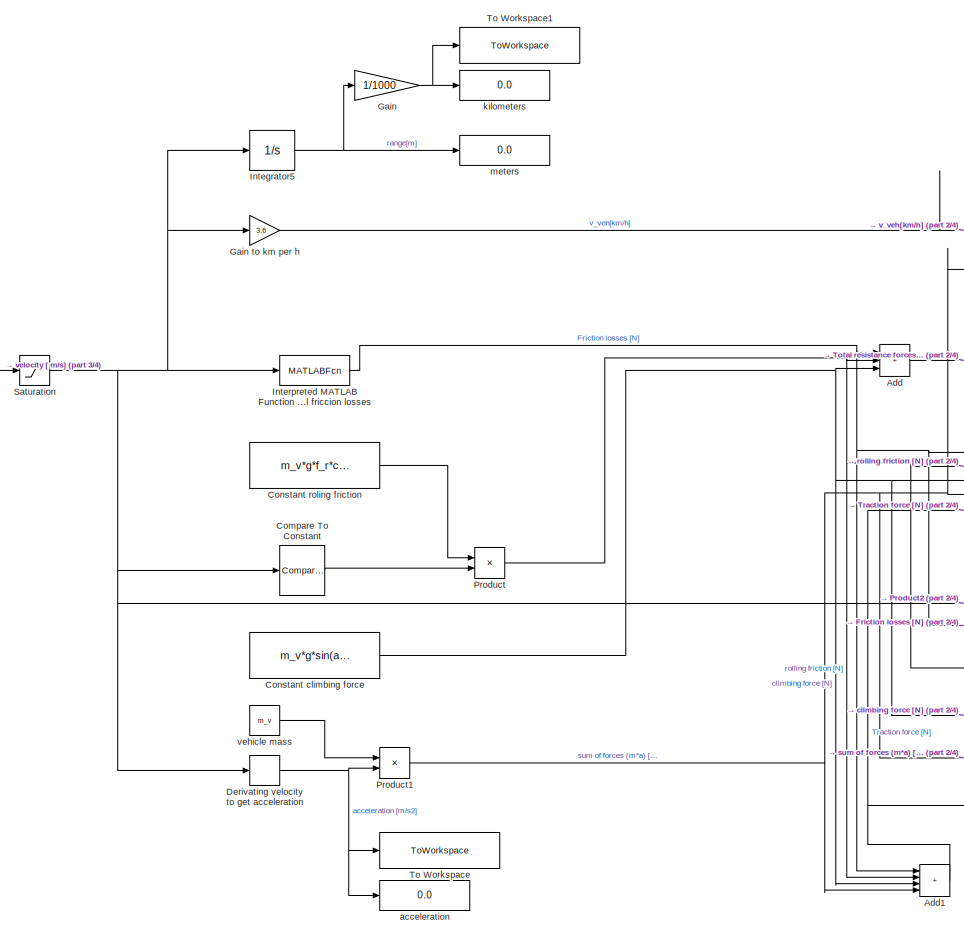
[diagram: root canvas - part 1/4, left side, full height]
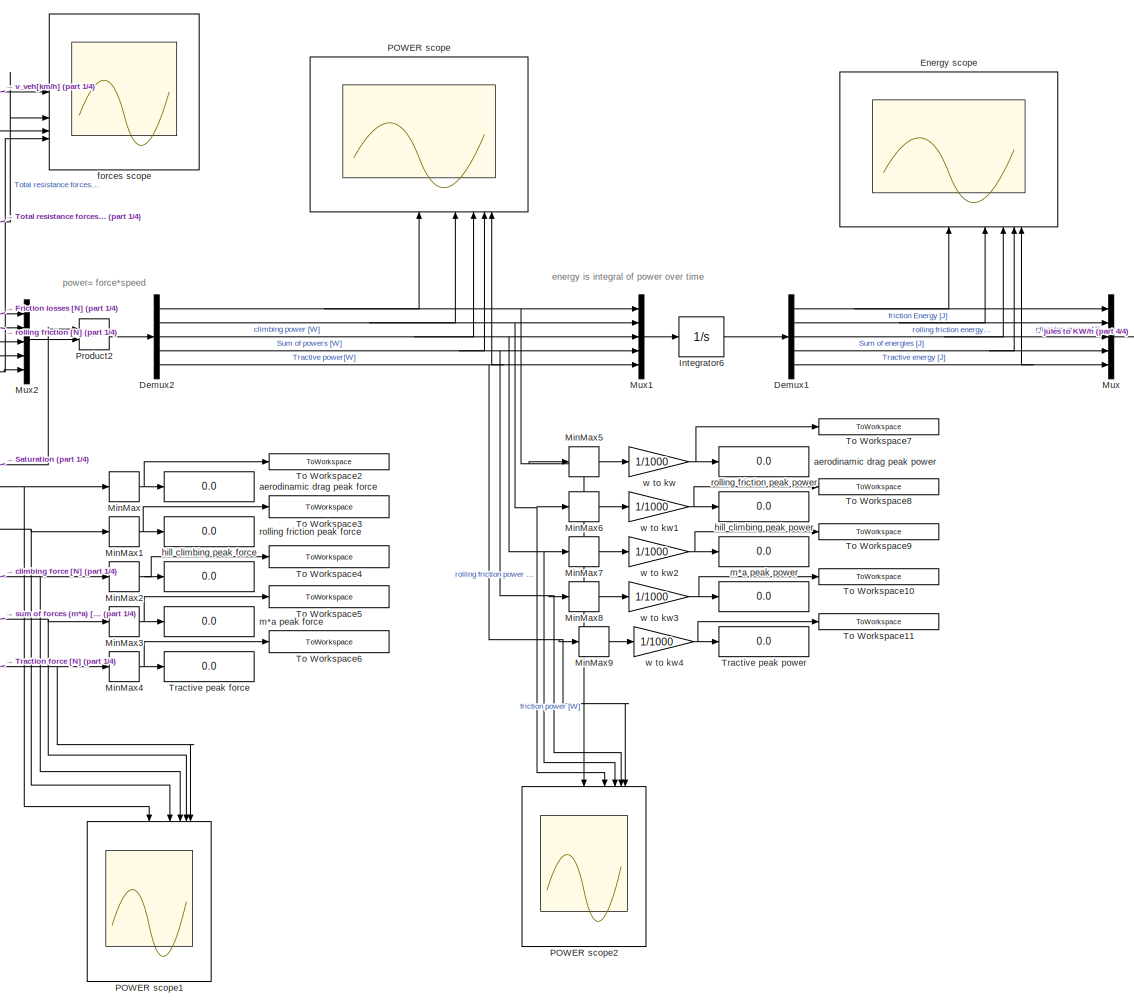
[diagram: root canvas - part 2/4, center side, full height]
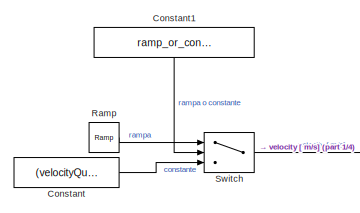
[diagram: root canvas - part 3/4, top left region]
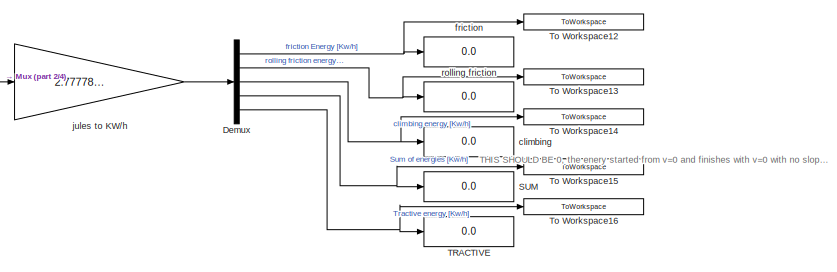
[diagram: root canvas - part 4/4, middle right region]
MODEL slx_9a1c41d86286
KIND model
CONFIG AbsTol = auto
CONFIG EnableMultiTasking = off
CONFIG FixedStep = auto
CONFIG MaxStep = 1
CONFIG MinStep = auto
CONFIG RelTol = 1e-3
CONFIG SampleTimeConstraint = Unconstrained
CONFIG SolverName = VariableStepAuto
CONFIG StartTime = 0.0
CONFIG StopTime = sim_time
BLOCK [Sum] Add
  IconShape = rectangular
  Inputs = +++
BLOCK [Sum] Add1
  IconShape = rectangular
  Inputs = ++++
BLOCK [Reference] Compare To Constant  REF=simulink/Logic and Bit
Operations/Compare
To Constant
  SourceBlock = simulink/Logic and Bit\nOperations/Compare\nTo Constant
  SourceType = Compare To Constant
BLOCK [Constant] Constant
  Value = (velocityQuiz1/3.6)
BLOCK [Constant] Constant climbing force
  Value = m_v*g*sin(angle_road)
BLOCK [Constant] Constant roling friction
  Value = m_v*g*f_r*cos(angle_road)
BLOCK [Constant] Constant1
  NameLocation = left
  Value = ramp_or_constant
BLOCK [Demux] Demux
  Outputs = 5
BLOCK [Demux] Demux1
  Outputs = 5
BLOCK [Demux] Demux2
  Outputs = 5
BLOCK [Derivative] Derivating velocity to get acceleration
BLOCK [Scope] Energy scope
  Floating = off
  NameLocation = top
  NumInputPorts = 5
  ScopeSpecificationString = Simulink.scopes.TimeScopeBlockCfg('CurrentConfiguration', extmgr.ConfigurationSet(extmgr.Configuration('Core','General UI',true),extmgr.Configuration('Core','Source UI',true),extmgr.Configuration('Sources','WiredSimulink',true,'DataLoggingVariableName','ScopeData2'),extmgr.Configuration('Visuals','Time Domain',true,'SerializedDisplays',{struct('MinYLimReal','-213094.37195','MaxYLimReal','1917849.3...<+2085ch>
BLOCK [Gain] Gain
  Gain = 1/1000
BLOCK [Gain] Gain to km per h
  Gain = 3.6
BLOCK [Integrator] Integrator5
BLOCK [Integrator] Integrator6
BLOCK [MATLABFcn] Interpreted MATLAB Function Aerodinamical friccion losses
  MATLABFcn = (1/2)*air_dens*A_f*C_d*((u(1)-wind_speed)^2)
BLOCK [MinMax] MinMax
  Function = max
BLOCK [MinMax] MinMax1
  Function = max
BLOCK [MinMax] MinMax2
  Function = max
BLOCK [MinMax] MinMax3
  Function = max
BLOCK [MinMax] MinMax4
  Function = max
BLOCK [MinMax] MinMax5
  Function = max
BLOCK [MinMax] MinMax6
  Function = max
BLOCK [MinMax] MinMax7
  Function = max
BLOCK [MinMax] MinMax8
  Function = max
BLOCK [MinMax] MinMax9
  Function = max
BLOCK [Mux] Mux
  DisplayOption = bar
  Inputs = 5
BLOCK [Mux] Mux1
  DisplayOption = bar
  Inputs = 5
BLOCK [Mux] Mux2
  DisplayOption = bar
  Inputs = 5
BLOCK [Scope] POWER scope
  Floating = off
  NameLocation = top
  NumInputPorts = 5
  ScopeSpecificationString = Simulink.scopes.TimeScopeBlockCfg('CurrentConfiguration', extmgr.ConfigurationSet(extmgr.Configuration('Core','General UI',true),extmgr.Configuration('Core','Source UI',true),extmgr.Configuration('Sources','WiredSimulink',true,'DataLoggingVariableName','ScopeData1'),extmgr.Configuration('Visuals','Time Domain',true,'SerializedDisplays',{struct('MinYLimReal','-1985.29398','MaxYLimReal','17867.64583...<+2067ch>
BLOCK [Scope] POWER scope1
  Floating = off
  NumInputPorts = 5
  ScopeSpecificationString = Simulink.scopes.TimeScopeBlockCfg('CurrentConfiguration', extmgr.ConfigurationSet(extmgr.Configuration('Core','General UI',true),extmgr.Configuration('Core','Source UI',true),extmgr.Configuration('Sources','WiredSimulink',true,'DataLoggingVariableName','ScopeData1'),extmgr.Configuration('Visuals','Time Domain',true,'SerializedDisplays',{struct('MinYLimReal','-41.36029','MaxYLimReal','372.24262','Y...<+6195ch>
BLOCK [Scope] POWER scope2
  Floating = off
  NumInputPorts = 5
  ScopeSpecificationString = Simulink.scopes.TimeScopeBlockCfg('CurrentConfiguration', extmgr.ConfigurationSet(extmgr.Configuration('Core','General UI',true),extmgr.Configuration('Core','Source UI',true),extmgr.Configuration('Sources','WiredSimulink',true,'DataLoggingVariableName','ScopeData2'),extmgr.Configuration('Visuals','Time Domain',true,'SerializedDisplays',{struct('MinYLimReal','-1148.89698','MaxYLimReal','10340.07282...<+6210ch>
BLOCK [Product] Product
BLOCK [Product] Product1
BLOCK [Product] Product2
BLOCK [Reference] Ramp  REF=simulink/Sources/Ramp
  SourceBlock = simulink/Sources/Ramp
  SourceType = Ramp
BLOCK [Display] SUM 
  Decimation = 1
  NameLocation = right
BLOCK [Saturate] Saturation
  UpperLimit = 120/3.6
BLOCK [Switch] Switch
  Criteria = u2 > Threshold
  InputSameDT = off
  SaturateOnIntegerOverflow = off
BLOCK [Display] TRACTIVE
  Decimation = 1
  NameLocation = right
BLOCK [ToWorkspace] To Workspace
  FixptAsFi = on
  MaxDataPoints = inf
  SampleTime = -1
  SaveFormat = Timeseries
  VariableName = acceleration
BLOCK [ToWorkspace] To Workspace1
  FixptAsFi = on
  MaxDataPoints = inf
  SampleTime = -1
  SaveFormat = Timeseries
  VariableName = distanceKm
BLOCK [ToWorkspace] To Workspace10
  FixptAsFi = on
  MaxDataPoints = inf
  SampleTime = -1
  SaveFormat = Timeseries
  VariableName = ma_peak_power
BLOCK [ToWorkspace] To Workspace11
  FixptAsFi = on
  MaxDataPoints = inf
  SampleTime = -1
  SaveFormat = Timeseries
  VariableName = tractive_peak_power
BLOCK [ToWorkspace] To Workspace12
  FixptAsFi = on
  MaxDataPoints = inf
  SampleTime = -1
  SaveFormat = Timeseries
  VariableName = aero_drag_energy
BLOCK [ToWorkspace] To Workspace13
  FixptAsFi = on
  MaxDataPoints = inf
  SampleTime = -1
  SaveFormat = Timeseries
  VariableName = rolling_friction_energy
BLOCK [ToWorkspace] To Workspace14
  FixptAsFi = on
  MaxDataPoints = inf
  SampleTime = -1
  SaveFormat = Timeseries
  VariableName = hill_climbing_energy
BLOCK [ToWorkspace] To Workspace15
  FixptAsFi = on
  MaxDataPoints = inf
  SampleTime = -1
  SaveFormat = Timeseries
  VariableName = ma_energy
BLOCK [ToWorkspace] To Workspace16
  FixptAsFi = on
  MaxDataPoints = inf
  SampleTime = -1
  SaveFormat = Timeseries
  VariableName = tractive_energy
BLOCK [ToWorkspace] To Workspace2
  FixptAsFi = on
  MaxDataPoints = inf
  SampleTime = -1
  SaveFormat = Timeseries
  VariableName = aero_drag_peak_force
BLOCK [ToWorkspace] To Workspace3
  FixptAsFi = on
  MaxDataPoints = inf
  SampleTime = -1
  SaveFormat = Timeseries
  VariableName = rolling_friction_peak_force
BLOCK [ToWorkspace] To Workspace4
  FixptAsFi = on
  MaxDataPoints = inf
  SampleTime = -1
  SaveFormat = Timeseries
  VariableName = hill_climbing_peak_force
BLOCK [ToWorkspace] To Workspace5
  FixptAsFi = on
  MaxDataPoints = inf
  SampleTime = -1
  SaveFormat = Timeseries
  VariableName = ma_peak_force
BLOCK [ToWorkspace] To Workspace6
  FixptAsFi = on
  MaxDataPoints = inf
  SampleTime = -1
  SaveFormat = Timeseries
  VariableName = tractive_peak_force
BLOCK [ToWorkspace] To Workspace7
  FixptAsFi = on
  MaxDataPoints = inf
  SampleTime = -1
  SaveFormat = Timeseries
  VariableName = aero_drag_peak_power
BLOCK [ToWorkspace] To Workspace8
  FixptAsFi = on
  MaxDataPoints = inf
  SampleTime = -1
  SaveFormat = Timeseries
  VariableName = rolling_friction_peak_power
BLOCK [ToWorkspace] To Workspace9
  FixptAsFi = on
  MaxDataPoints = inf
  SampleTime = -1
  SaveFormat = Timeseries
  VariableName = hill_climbing_peak_power
BLOCK [Display] Tractive peak force
  Decimation = 1
  NameLocation = right
BLOCK [Display] Tractive peak power
  Decimation = 1
  NameLocation = right
BLOCK [Display] acceleration
  Decimation = 1
BLOCK [Display] aerodinamic drag peak force
  Decimation = 1
  NameLocation = right
BLOCK [Display] aerodinamic drag peak power
  Decimation = 1
  NameLocation = right
BLOCK [Display] climbing
  Decimation = 1
  NameLocation = right
BLOCK [Scope] forces scope
  Floating = off
  NumInputPorts = 4
  ScopeSpecificationString = Simulink.scopes.TimeScopeBlockCfg('CurrentConfiguration', extmgr.ConfigurationSet(extmgr.Configuration('Core','General UI',true),extmgr.Configuration('Core','Source UI',true),extmgr.Configuration('Sources','WiredSimulink',true),extmgr.Configuration('Visuals','Time Domain',true,'SerializedDisplays',{struct('MinYLimReal','-12.5','MaxYLimReal','112.5','YLabelReal','','MinYLimMag','0.00000','MaxYLimMa...<+3467ch>
BLOCK [Display] friction
  Decimation = 1
  NameLocation = right
BLOCK [Display] hill climbing peak force
  Decimation = 1
  NameLocation = right
BLOCK [Display] hill climbing peak power
  Decimation = 1
  NameLocation = right
BLOCK [Gain] jules to KW//h
  Gain = 2.77778e-7
BLOCK [Display] kilometers
  Decimation = 1
BLOCK [Display] m*a peak force
  Decimation = 1
  NameLocation = right
BLOCK [Display] m*a peak power
  Decimation = 1
  NameLocation = right
BLOCK [Display] meters
  Decimation = 1
BLOCK [Display] rolling friction 
  Decimation = 1
  NameLocation = right
BLOCK [Display] rolling friction peak force
  Decimation = 1
  NameLocation = right
BLOCK [Display] rolling friction peak power
  Decimation = 1
  NameLocation = right
BLOCK [Constant] vehicle mass
  Value = m_v
BLOCK [Gain] w to kw
  Gain = 1/1000
BLOCK [Gain] w to kw1
  Gain = 1/1000
BLOCK [Gain] w to kw2
  Gain = 1/1000
BLOCK [Gain] w to kw3
  Gain = 1/1000
BLOCK [Gain] w to kw4
  Gain = 1/1000
ANNOTATION (root): THIS SHOULD BE 0, the enery started from v=0 and finishes with v=0 with no slope. we have a matlab numerical approach step time error
ANNOTATION (root): energy is integral of power over time
ANNOTATION (root): power= force*speed
NET Add1:1 -> MinMax4:1, Mux2:5, POWER scope1:5, forces scope:4
LINE Add:1 -> forces scope:2
LINE Compare To Constant:1 -> Product:2
NET Constant climbing force:1 -> Add1:3, Add:3, MinMax2:1, Mux2:3, POWER scope1:3
LINE Constant roling friction:1 -> Product:1
LINE Constant1:1 -> Switch:2
LINE Constant:1 -> Switch:3
NET Demux1:1 -> Energy scope:1, Mux:1
NET Demux1:2 -> Energy scope:2, Mux:2
NET Demux1:3 -> Energy scope:3, Mux:3
NET Demux1:4 -> Energy scope:4, Mux:4
NET Demux1:5 -> Energy scope:5, Mux:5
NET Demux2:1 -> MinMax5:1, Mux1:1, POWER scope2:1, POWER scope:1
NET Demux2:2 -> MinMax6:1, Mux1:2, POWER scope2:2, POWER scope:2
NET Demux2:3 -> MinMax7:1, Mux1:3, POWER scope2:3, POWER scope:3
NET Demux2:4 -> MinMax8:1, Mux1:4, POWER scope2:4, POWER scope:4
NET Demux2:5 -> MinMax9:1, Mux1:5, POWER scope2:5, POWER scope:5
NET Demux:1 -> To Workspace12:1, friction:1
NET Demux:2 -> To Workspace13:1, rolling friction :1
NET Demux:3 -> To Workspace14:1, climbing:1
NET Demux:4 -> SUM :1, To Workspace15:1
NET Demux:5 -> TRACTIVE:1, To Workspace16:1
NET Derivating velocity to get acceleration:1 -> Product1:2, To Workspace:1, acceleration:1
LINE Gain to km per h:1 -> forces scope:1
NET Gain:1 -> To Workspace1:1, kilometers:1
NET Integrator5:1 -> Gain:1, meters:1
LINE Integrator6:1 -> Demux1:1
NET Interpreted MATLAB Function Aerodinamical friccion losses:1 -> Add1:1, Add:1, MinMax:1, Mux2:1, POWER scope1:1
NET MinMax1:1 -> To Workspace3:1, rolling friction peak force:1
NET MinMax2:1 -> To Workspace4:1, hill climbing peak force:1
NET MinMax3:1 -> To Workspace5:1, m*a peak force:1
NET MinMax4:1 -> To Workspace6:1, Tractive peak force:1
LINE MinMax5:1 -> w to kw:1
LINE MinMax6:1 -> w to kw1:1
LINE MinMax7:1 -> w to kw2:1
LINE MinMax8:1 -> w to kw3:1
LINE MinMax9:1 -> w to kw4:1
NET MinMax:1 -> To Workspace2:1, aerodinamic drag peak force:1
LINE Mux1:1 -> Integrator6:1
LINE Mux2:1 -> Product2:2
LINE Mux:1 -> jules to KW//h:1
NET Product1:1 -> Add1:4, MinMax3:1, Mux2:4, POWER scope1:4, forces scope:3
LINE Product2:1 -> Demux2:1
NET Product:1 -> Add1:2, Add:2, MinMax1:1, Mux2:2, POWER scope1:2
LINE Ramp:1 -> Switch:1
NET Saturation:1 -> Compare To Constant:1, Derivating velocity to get acceleration:1, Gain to km per h:1, Integrator5:1, Interpreted MATLAB Function Aerodinamical friccion losses:1, Product2:1
LINE Switch:1 -> Saturation:1
LINE jules to KW//h:1 -> Demux:1
LINE vehicle mass:1 -> Product1:1
NET w to kw1:1 -> To Workspace8:1, rolling friction peak power:1
NET w to kw2:1 -> To Workspace9:1, hill climbing peak power:1
NET w to kw3:1 -> To Workspace10:1, m*a peak power:1
NET w to kw4:1 -> To Workspace11:1, Tractive peak power:1
NET w to kw:1 -> To Workspace7:1, aerodinamic drag peak power:1
note: NET lines group one-source signal fan-out (src -> all destinations, sorted); 1:1 wires keep LINE
